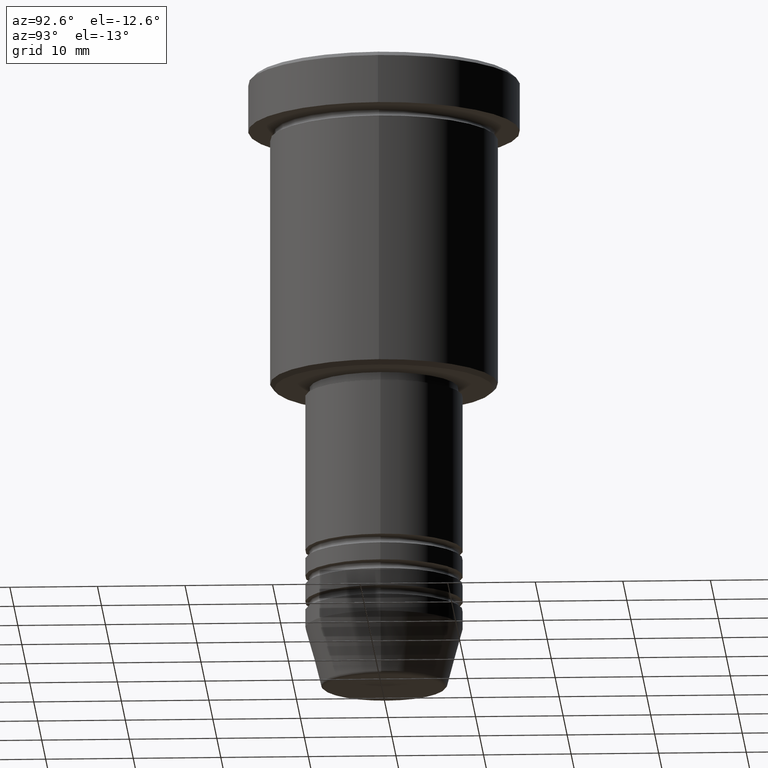
[diagram: clean part render]
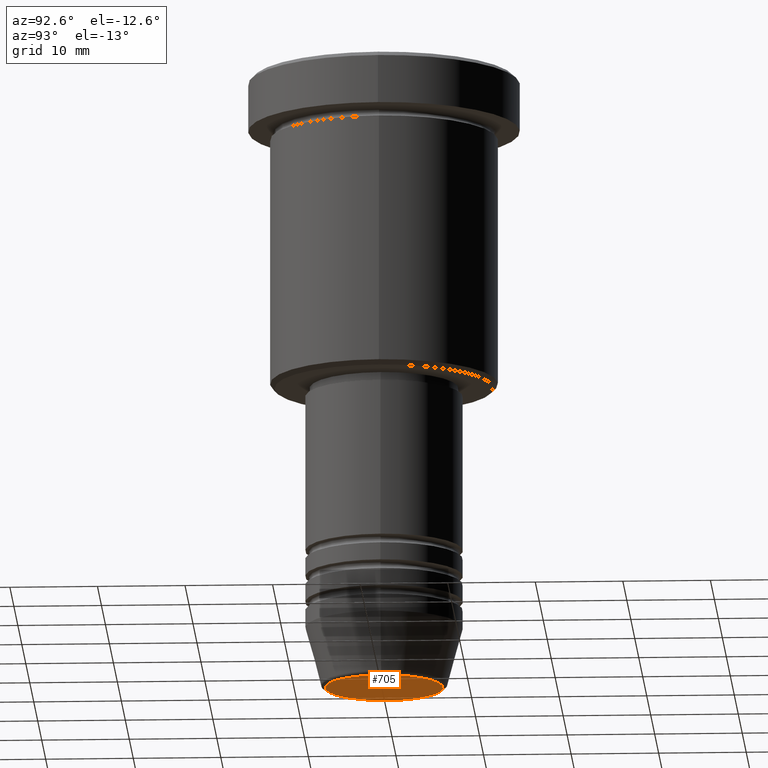
[diagram: same view with one face highlighted and labeled with its STEP entity id]
A machine part, auxiliary view. The second image highlights one B-rep face of the part: STEP entity #705.
In plain terms, the highlighted planar face has unit normal (0, -0, 1).
Its self-contained STEP definition (entity closure, byte-faithful):
#12 = AXIS2_PLACEMENT_3D ( 'NONE', #217, #563, #644 ) ;
#33 = CIRCLE ( 'NONE', #167, 6.740692158992653837 ) ;
#80 = DIRECTION ( 'NONE',  ( 0.000000000000000000, 0.000000000000000000, -1.000000000000000000 ) ) ;
#167 = AXIS2_PLACEMENT_3D ( 'NONE', #985, #80, #631 ) ;
#187 = PLANE ( 'NONE',  #12 ) ;
#190 = ORIENTED_EDGE ( 'NONE', *, *, #559, .T. ) ;
#217 = CARTESIAN_POINT ( 'NONE',  ( 0.000000000000000000, 0.000000000000000000, -71.00000000000001421 ) ) ;
#374 = DIRECTION ( 'NONE',  ( 0.000000000000000000, 0.000000000000000000, -1.000000000000000000 ) ) ;
#405 = AXIS2_PLACEMENT_3D ( 'NONE', #1115, #374, #1109 ) ;
#452 = CARTESIAN_POINT ( 'NONE',  ( -6.740692158992653837, 8.550696569392682723E-16, -71.00000000000001421 ) ) ;
#523 = ORIENTED_EDGE ( 'NONE', *, *, #1119, .T. ) ;
#559 = EDGE_CURVE ( 'NONE', #743, #959, #33, .T. ) ;
#563 = DIRECTION ( 'NONE',  ( 0.000000000000000000, -0.000000000000000000, 1.000000000000000000 ) ) ;
#587 = EDGE_LOOP ( 'NONE', ( #523, #190 ) ) ;
#631 = DIRECTION ( 'NONE',  ( 1.000000000000000000, 0.000000000000000000, 0.000000000000000000 ) ) ;
#644 = DIRECTION ( 'NONE',  ( 1.000000000000000000, 0.000000000000000000, 0.000000000000000000 ) ) ;
#705 = ADVANCED_FACE ( 'NONE', ( #841 ), #187, .F. ) ;
#743 = VERTEX_POINT ( 'NONE', #452 ) ;
#841 = FACE_OUTER_BOUND ( 'NONE', #587, .T. ) ;
#932 = CIRCLE ( 'NONE', #405, 6.740692158992653837 ) ;
#959 = VERTEX_POINT ( 'NONE', #1078 ) ;
#985 = CARTESIAN_POINT ( 'NONE',  ( 0.000000000000000000, 0.000000000000000000, -71.00000000000001421 ) ) ;
#1078 = CARTESIAN_POINT ( 'NONE',  ( 6.740692158992653837, 0.000000000000000000, -71.00000000000001421 ) ) ;
#1109 = DIRECTION ( 'NONE',  ( 1.000000000000000000, 0.000000000000000000, 0.000000000000000000 ) ) ;
#1115 = CARTESIAN_POINT ( 'NONE',  ( 0.000000000000000000, 0.000000000000000000, -71.00000000000001421 ) ) ;
#1119 = EDGE_CURVE ( 'NONE', #959, #743, #932, .T. ) ;